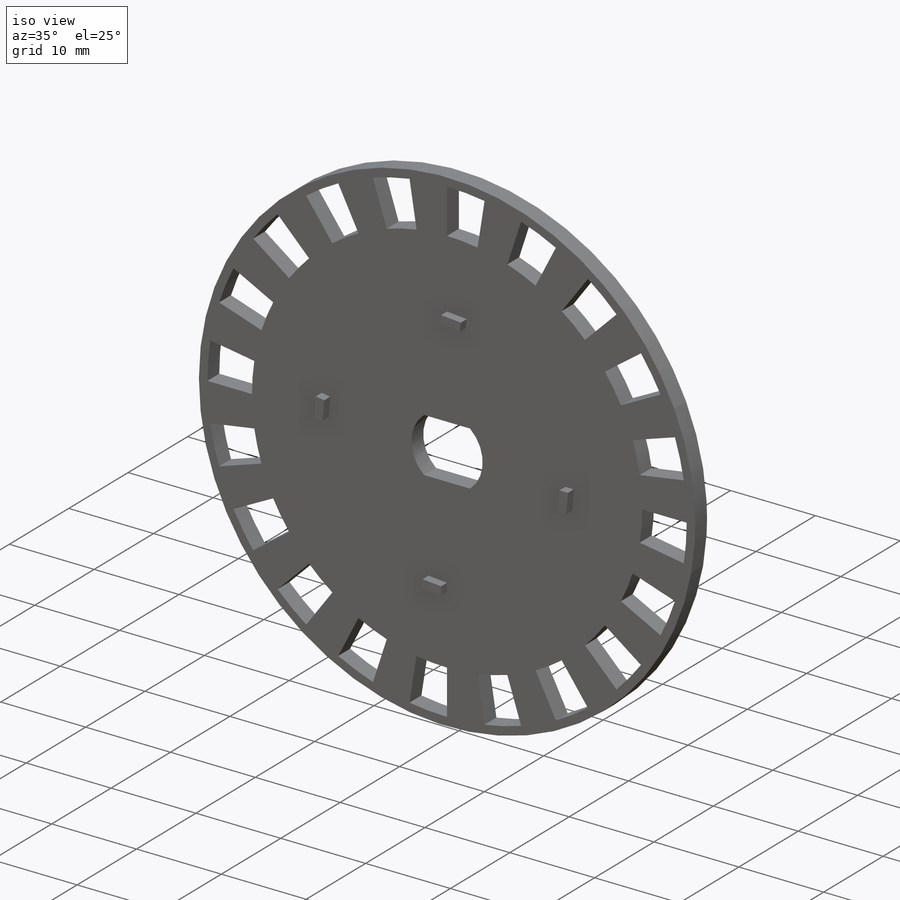
[diagram: iso view]
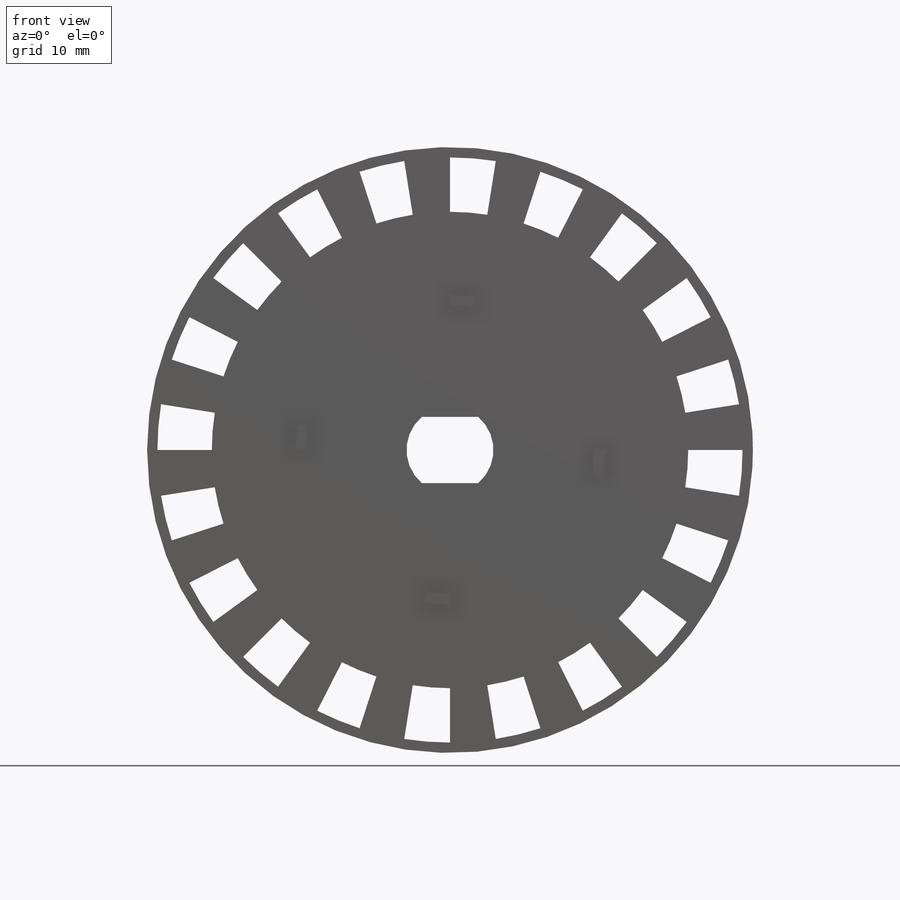
[diagram: front view]
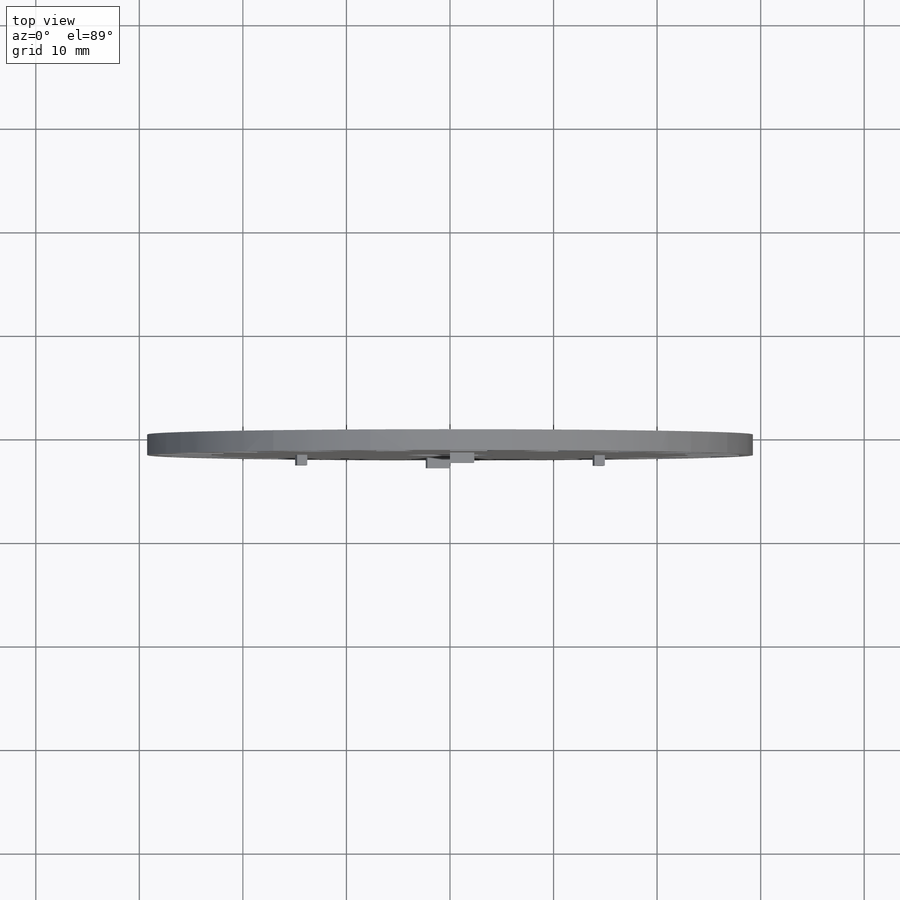
[diagram: top view]
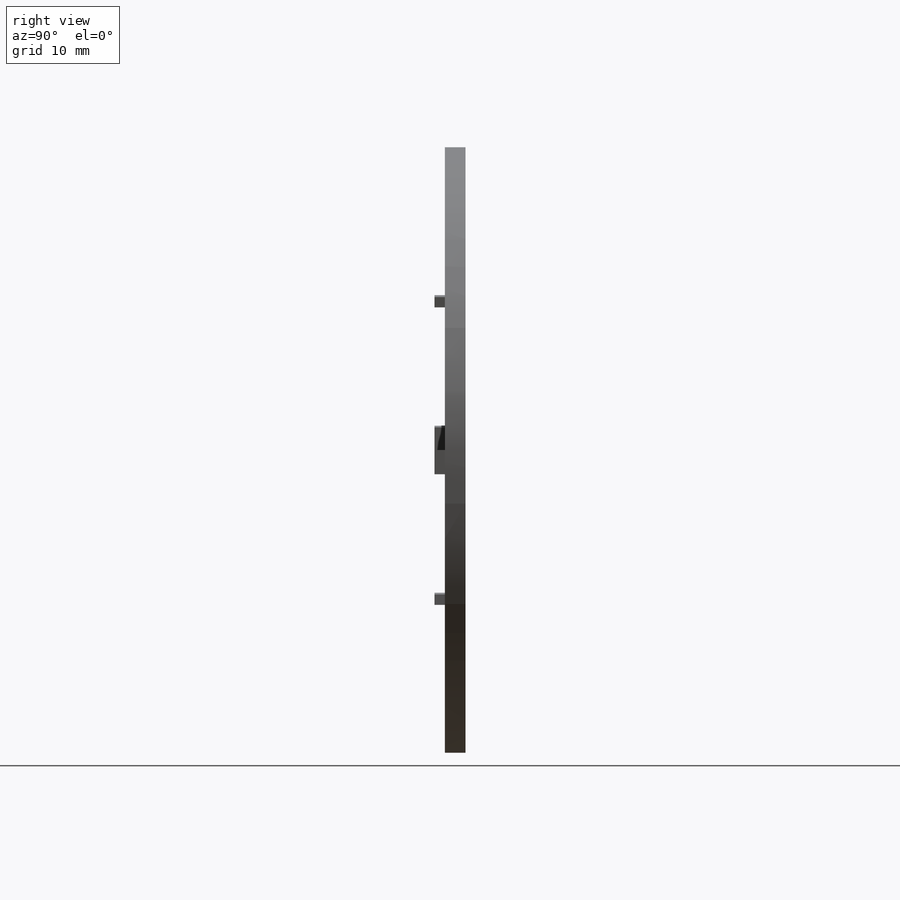
[diagram: right view]
SOLIDWORKS PART (.sldprt)
format: sldprt  version: not decoded by parser v0  size: 336,896 bytes
history: native  units: mm
features: sketch x4, extrude x2, cut_extrude x2, material x1, move_body x1 + 1 further entry (+16 scaffold rows collapsed; 5 parser-record rows omitted)
feature tree (32):
  scaffold x16  (default folders/planes/origin — collapsed)
  material  "Material <not specified>"
  sketch  "Sketch1"  dims[D1=26.5mm]
  extrude  "Boss-Extrude1"  Depth=2mm
  sketch  "Sketch2"  dims[D1=1.0mm D2=2.0 D3=4.0]
  extrude  "Boss-Extrude2"  Depth=1mm
  "Axel"
  parser-record x5  (decoder bookkeeping rows leaked as tree rows — omitted from the tree; the rows remain in map.json)
  move_body  "Body-Move/Copy2"
  sketch  "Sketch3"  dims[D1=0.25mm]
  cut_extrude  "Cut-Extrude1"  Depth=10mm
  sketch  "Sketch4"  dims[c1.D1=~25.49772mm c2.D1=20.0]
  cut_extrude  "Cut-Extrude2"  Depth=10mm
decode coverage: 8 of 9 modeling features carry decoded parameters; 1 rows unclassified (native names shown)
note: ~ marks probable driven/reference dimensions
note: suppression state not decoded; provenance and decode notes live in map.json
